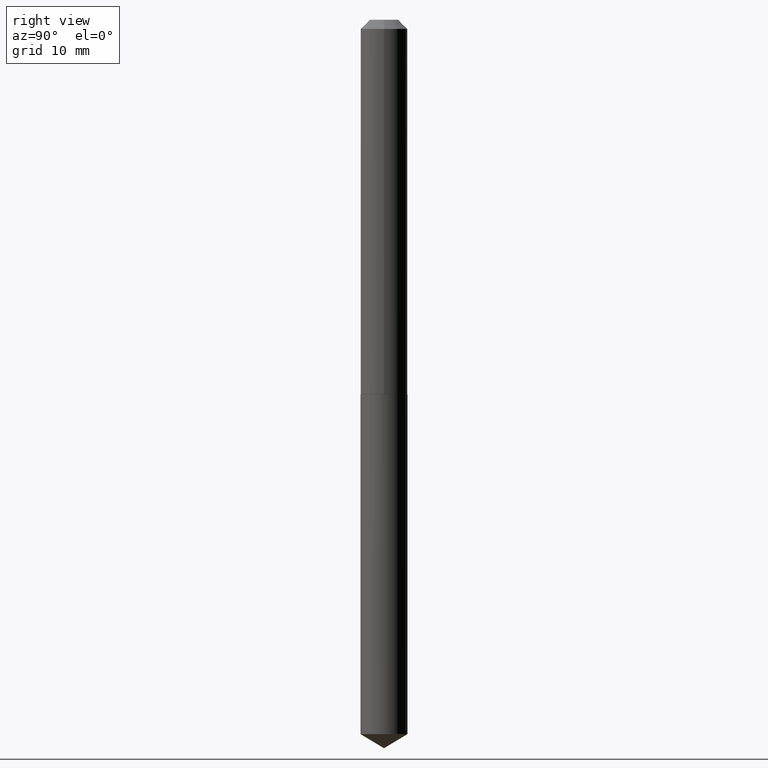
[diagram: clean part render]
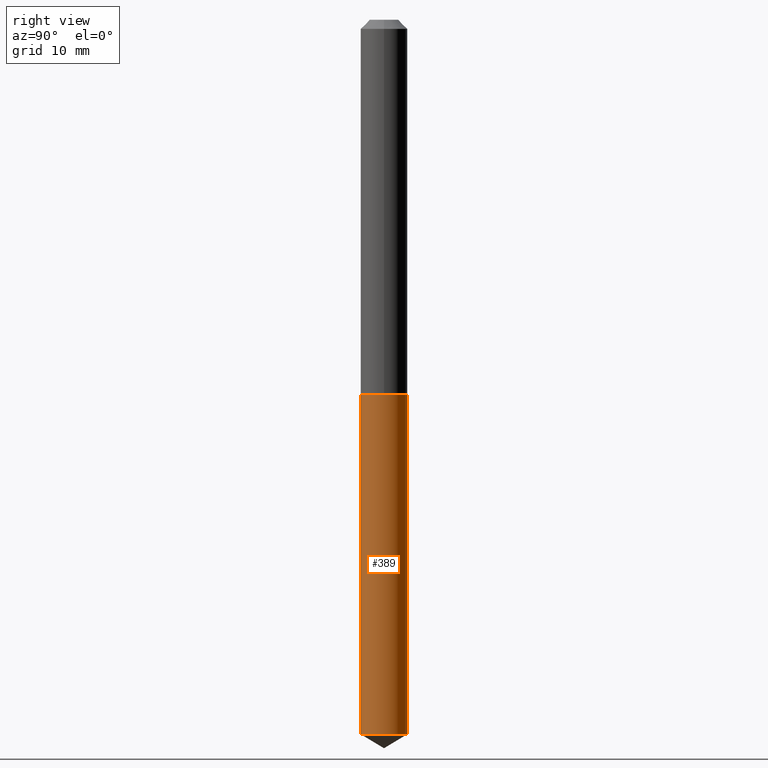
[diagram: same view with one face highlighted and labeled with its STEP entity id]
A machine part, right view. The second image highlights one B-rep face of the part: STEP entity #389.
In plain terms, the highlighted cylindrical surface (edge-blend (fillet) strip) has radius 2.0447 mm, axis along (-0, 0, 1).
Its self-contained STEP definition (entity closure, byte-faithful):
#3 = LINE ( 'NONE', #121, #148 ) ;
#4 = ORIENTED_EDGE ( 'NONE', *, *, #10, .T. ) ;
#10 = EDGE_CURVE ( 'NONE', #119, #146, #76, .T. ) ;
#15 = DIRECTION ( 'NONE',  ( -2.445462856244294093E-29, 3.491489859497081340E-15, 1.000000000000000000 ) ) ;
#23 = EDGE_CURVE ( 'NONE', #90, #184, #124, .T. ) ;
#36 = CARTESIAN_POINT ( 'NONE',  ( 5.719869022869407167E-16, 0.08049999999999550571, -1.286000000000000476 ) ) ;
#46 = DIRECTION ( 'NONE',  ( -6.982962677686266711E-15, -1.000000000000000000, 3.393599992129519526E-15 ) ) ;
#47 = FACE_OUTER_BOUND ( 'NONE', #327, .T. ) ;
#76 = CIRCLE ( 'NONE', #279, 0.08050000000000000211 ) ;
#90 = VERTEX_POINT ( 'NONE', #189 ) ;
#102 = AXIS2_PLACEMENT_3D ( 'NONE', #109, #15, #133 ) ;
#109 = CARTESIAN_POINT ( 'NONE',  ( 3.144872884754086197E-29, -4.490045001752285461E-15, -1.286000000000000254 ) ) ;
#113 = CYLINDRICAL_SURFACE ( 'NONE', #238, 0.08050000000000000211 ) ;
#119 = VERTEX_POINT ( 'NONE', #276 ) ;
#121 = CARTESIAN_POINT ( 'NONE',  ( 5.719869022869119232E-16, 0.08049999999999550571, -1.286000000000000476 ) ) ;
#124 = CIRCLE ( 'NONE', #102, 0.08050000000000000211 ) ;
#133 = DIRECTION ( 'NONE',  ( -6.982962677686266711E-15, -1.000000000000000000, 3.393599992129519526E-15 ) ) ;
#137 = CARTESIAN_POINT ( 'NONE',  ( -5.621284955537130065E-16, -0.08050000000000449851, -1.285999999999999810 ) ) ;
#146 = VERTEX_POINT ( 'NONE', #336 ) ;
#148 = VECTOR ( 'NONE', #241, 39.37007874015748143 ) ;
#161 = DIRECTION ( 'NONE',  ( -2.445462856244294093E-29, 3.491489859497081340E-15, 1.000000000000000000 ) ) ;
#167 = DIRECTION ( 'NONE',  ( -6.982962677686266711E-15, -1.000000000000000000, 3.393599992129519526E-15 ) ) ;
#168 = LINE ( 'NONE', #137, #351 ) ;
#174 = ORIENTED_EDGE ( 'NONE', *, *, #209, .T. ) ;
#184 = VERTEX_POINT ( 'NONE', #36 ) ;
#189 = CARTESIAN_POINT ( 'NONE',  ( -5.621284955537130065E-16, -0.08050000000000449851, -1.285999999999999810 ) ) ;
#209 = EDGE_CURVE ( 'NONE', #146, #184, #3, .T. ) ;
#229 = CARTESIAN_POINT ( 'NONE',  ( 5.995379515022905912E-29, -8.559832841138121556E-15, -2.451630720168282096 ) ) ;
#238 = AXIS2_PLACEMENT_3D ( 'NONE', #325, #322, #167 ) ;
#241 = DIRECTION ( 'NONE',  ( -2.445462856244294093E-29, 3.491489859497080946E-15, 1.000000000000000000 ) ) ;
#247 = ORIENTED_EDGE ( 'NONE', *, *, #23, .F. ) ;
#276 = CARTESIAN_POINT ( 'NONE',  ( -5.621284955536844103E-16, -0.08050000000000855083, -2.451630720168281652 ) ) ;
#279 = AXIS2_PLACEMENT_3D ( 'NONE', #229, #161, #46 ) ;
#322 = DIRECTION ( 'NONE',  ( -2.445462856244294093E-29, 3.491489859497081340E-15, 1.000000000000000000 ) ) ;
#325 = CARTESIAN_POINT ( 'NONE',  ( 3.144872884754086197E-29, -4.490045001752285461E-15, -1.286000000000000254 ) ) ;
#327 = EDGE_LOOP ( 'NONE', ( #4, #174, #247, #363 ) ) ;
#336 = CARTESIAN_POINT ( 'NONE',  ( 5.719869022869405194E-16, 0.08049999999999142564, -2.451630720168282096 ) ) ;
#351 = VECTOR ( 'NONE', #385, 39.37007874015748143 ) ;
#359 = EDGE_CURVE ( 'NONE', #119, #90, #168, .T. ) ;
#363 = ORIENTED_EDGE ( 'NONE', *, *, #359, .F. ) ;
#385 = DIRECTION ( 'NONE',  ( -2.445462856244294093E-29, 3.491489859497080946E-15, 1.000000000000000000 ) ) ;
#389 = ADVANCED_FACE ( 'NONE', ( #47 ), #113, .T. ) ;